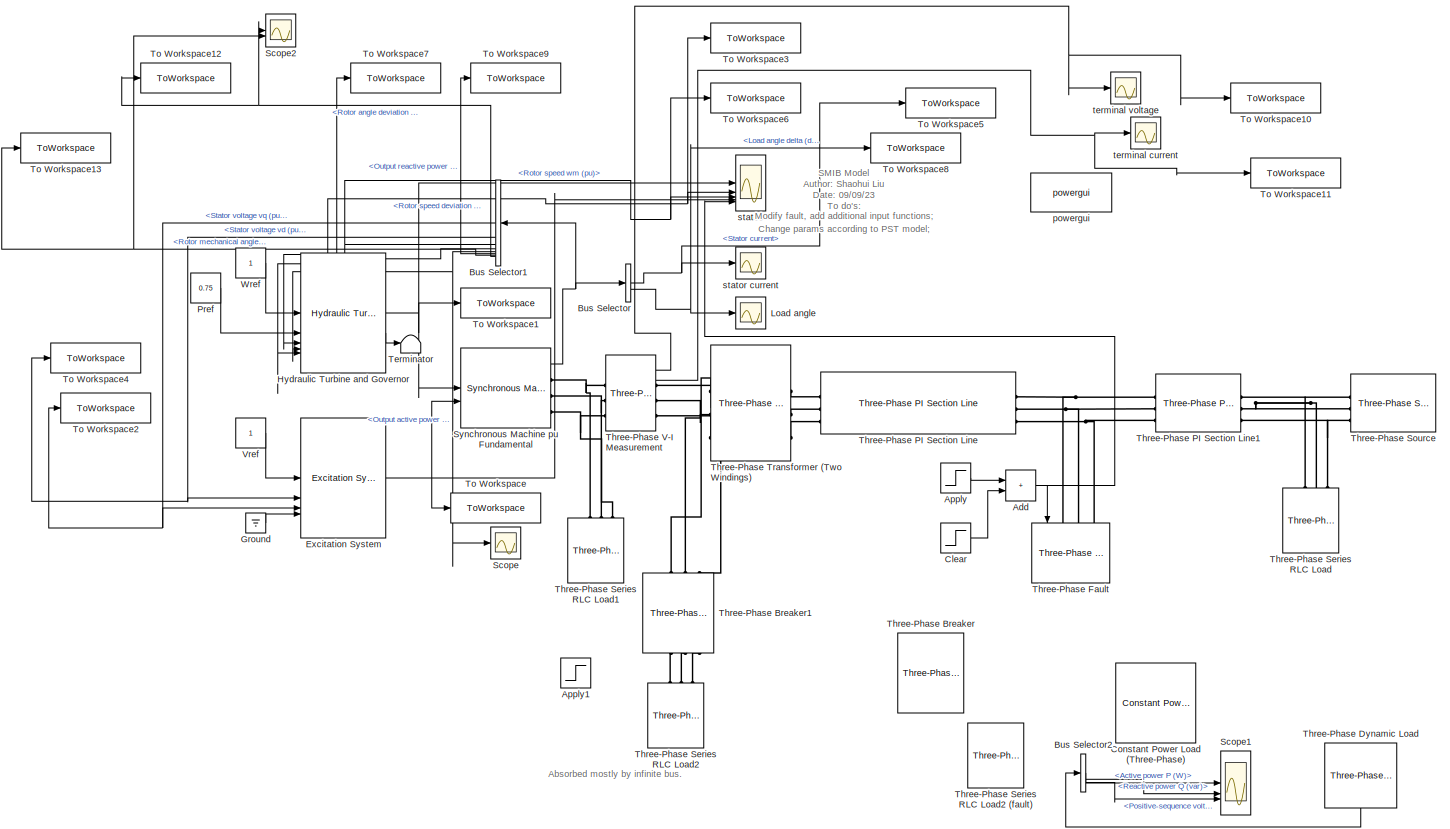
[diagram: root canvas - part 1/1, most of the canvas]
MODEL slx_c48f810256ff
KIND model
CONFIG AbsTol = auto
CONFIG EnableMultiTasking = off
CONFIG FixedStep = 1e-4
CONFIG MaxStep = auto
CONFIG MinStep = auto
CONFIG RelTol = 1e-3
CONFIG SampleTimeConstraint = Unconstrained
CONFIG SolverName = FixedStepAuto
CONFIG StartTime = 0.0
CONFIG StopTime = 30.0
BLOCK [Sum] Add
  IconShape = rectangular
BLOCK [Step] Apply
  After = 5
  SampleTime = 0
  Time = 15
BLOCK [Step] Apply1
  Commented = on
  SampleTime = 0
  Time = 23
BLOCK [BusSelector] Bus Selector
  OutputSignals = Stator current,Load angle   delta  (deg)
BLOCK [BusSelector] Bus Selector1
  OutputSignals = dq0 components.Stator voltage  vq (pu),dq0 components.Stator voltage  vd (pu),Mechanical.Rotor speed  wm (pu),Mechanical.Rotor speed deviation  dw (pu),Output active power   Peo (pu),Output reactive power  Qeo (pu),Mechanical.Rotor mechanical angle  theta (deg),Mechanical.Rotor angle deviation  d_theta (rad)
BLOCK [BusSelector] Bus Selector2
  Commented = on
  OutputSignals = Active power P (W),Reactive power Q (var),Positive-sequence voltage V (pu)
BLOCK [Step] Clear
  After = -5
  SampleTime = 0
  Time = 15.1667
BLOCK [Reference] Constant Power Load (Three-Phase)  REF=ee_lib/Passive/Constant Power Load
(Three-Phase)
  Commented = on
  SourceBlock = ee_lib/Passive/Constant Power Load\n(Three-Phase)
  SourceType = Constant Power Load\n(Three-Phase)
BLOCK [Reference] Excitation System  REF=spsExcitationSystemLib/Excitation System
  LibrarySourceBlock = sps_lib/Electrical Machines/Synchronous Machine Control/Excitation System
  SourceBlock = spsExcitationSystemLib/Excitation System
  SourceType = Excitation System
BLOCK [Ground] Ground
BLOCK [Reference] Hydraulic Turbine and Governor  REF=spsHydraulicTurbineandGovernorLib/Hydraulic Turbine
and Governor
  LibrarySourceBlock = sps_lib/Electrical Machines/Synchronous Machine Control/Hydraulic Turbine\nand Governor
  SourceBlock = spsHydraulicTurbineandGovernorLib/Hydraulic Turbine\nand Governor
  SourceType = Hydraulic Turbine and Governor
BLOCK [Scope] Load angle
  Floating = off
  NumInputPorts = 1
  ScopeSpecificationString = Simulink.scopes.TimeScopeBlockCfg('CurrentConfiguration', extmgr.ConfigurationSet(extmgr.Configuration('Core','General UI',true),extmgr.Configuration('Core','Source UI',true),extmgr.Configuration('Sources','WiredSimulink',true,'DataLoggingVariableName','ScopeData1'),extmgr.Configuration('Visuals','Time Domain',true,'SerializedDisplays',{struct('MinYLimReal','-78.1612','MaxYLimReal','141.13987','YL...<+1467ch>
BLOCK [Constant] Pref
  Value = 0.75
BLOCK [Scope] Scope
  Floating = off
  NumInputPorts = 1
  ScopeSpecificationString = Simulink.scopes.TimeScopeBlockCfg('CurrentConfiguration', extmgr.ConfigurationSet(extmgr.Configuration('Core','General UI',true),extmgr.Configuration('Core','Source UI',true),extmgr.Configuration('Sources','WiredSimulink',true,'DataLoggingVariableName','ScopeData1'),extmgr.Configuration('Visuals','Time Domain',true,'SerializedDisplays',{struct('MinYLimReal','0.3476','MaxYLimReal','1.1009','YLabelR...<+1429ch>
BLOCK [Scope] Scope1
  Commented = on
  Floating = off
  NumInputPorts = 3
  ScopeSpecificationString = Simulink.scopes.TimeScopeBlockCfg('CurrentConfiguration', extmgr.ConfigurationSet(extmgr.Configuration('Core','General UI',true),extmgr.Configuration('Core','Source UI',true),extmgr.Configuration('Sources','WiredSimulink',true,'DataLoggingVariableName','ScopeData1'),extmgr.Configuration('Visuals','Time Domain',true,'SerializedDisplays',{struct('MinYLimReal','-275826016478479712.00000','MaxYLimReal...<+1611ch>
BLOCK [Scope] Scope2
  Floating = off
  NumInputPorts = 2
  ScopeSpecificationString = Simulink.scopes.TimeScopeBlockCfg('CurrentConfiguration', extmgr.ConfigurationSet(extmgr.Configuration('Core','General UI',true),extmgr.Configuration('Core','Source UI',true),extmgr.Configuration('Sources','WiredSimulink',true,'DataLoggingVariableName','ScopeData1'),extmgr.Configuration('Visuals','Time Domain',true,'SerializedDisplays',{struct('MinYLimReal','-4051.46386','MaxYLimReal','36433.65321...<+1490ch>
BLOCK [Reference] Synchronous Machine pu Fundamental  REF=spsSynchronousMachinepuFundamentalLib/Synchronous Machine
pu Fundamental
  LibrarySourceBlock = sps_lib/Electrical Machines/Synchronous Machine\npu Fundamental
  SourceBlock = spsSynchronousMachinepuFundamentalLib/Synchronous Machine\npu Fundamental
  SourceType = Synchronous Machine
BLOCK [Terminator] Terminator
BLOCK [Reference] Three-Phase Breaker  REF=spsThreePhaseBreakerLib/Three-Phase Breaker
  Commented = on
  LibrarySourceBlock = sps_lib/Power Grid Elements/Three-Phase Breaker
  NameLocation = left
  SourceBlock = spsThreePhaseBreakerLib/Three-Phase Breaker
  SourceType = Three-Phase Breaker
BLOCK [Reference] Three-Phase Breaker1  REF=spsThreePhaseBreakerLib/Three-Phase Breaker
  Commented = on
  LibrarySourceBlock = sps_lib/Power Grid Elements/Three-Phase Breaker
  NameLocation = left
  SourceBlock = spsThreePhaseBreakerLib/Three-Phase Breaker
  SourceType = Three-Phase Breaker
BLOCK [Reference] Three-Phase Dynamic Load  REF=spsThreePhaseDynamicLoadLib/Three-Phase
Dynamic Load
  Commented = on
  LibrarySourceBlock = sps_lib/Passives/Three-Phase\nDynamic Load
  NameLocation = left
  SourceBlock = spsThreePhaseDynamicLoadLib/Three-Phase\nDynamic Load
  SourceType = Three-Phase Dynamic Load
BLOCK [Reference] Three-Phase Fault  REF=spsThreePhaseFaultLib/Three-Phase Fault
  LibrarySourceBlock = sps_lib/Power Grid Elements/Three-Phase Fault
  NameLocation = left
  SourceBlock = spsThreePhaseFaultLib/Three-Phase Fault
  SourceType = Three-Phase Fault
BLOCK [Reference] Three-Phase PI Section Line  REF=spsThreePhasePISectionLineLib/Three-Phase
PI Section Line
  AttributesFormatString = \n
  LibrarySourceBlock = sps_lib/Power Grid Elements/Three-Phase\nPI Section Line
  SourceBlock = spsThreePhasePISectionLineLib/Three-Phase\nPI Section Line
  SourceType = Three-Phase PI Section Line
BLOCK [Reference] Three-Phase PI Section Line1  REF=spsThreePhasePISectionLineLib/Three-Phase
PI Section Line
  AttributesFormatString = \n
  LibrarySourceBlock = sps_lib/Power Grid Elements/Three-Phase\nPI Section Line
  SourceBlock = spsThreePhasePISectionLineLib/Three-Phase\nPI Section Line
  SourceType = Three-Phase PI Section Line
BLOCK [Reference] Three-Phase Series RLC Load  REF=spsThreePhaseSeriesRLCLoadLib/Three-Phase
Series RLC Load
  AttributesFormatString = \n
  LibrarySourceBlock = sps_lib/Passives/Three-Phase\nSeries RLC Load
  SourceBlock = spsThreePhaseSeriesRLCLoadLib/Three-Phase\nSeries RLC Load
  SourceType = Three-Phase Series RLC Load
BLOCK [Reference] Three-Phase Series RLC Load1  REF=spsThreePhaseSeriesRLCLoadLib/Three-Phase
Series RLC Load
  AttributesFormatString = \n
  LibrarySourceBlock = sps_lib/Passives/Three-Phase\nSeries RLC Load
  SourceBlock = spsThreePhaseSeriesRLCLoadLib/Three-Phase\nSeries RLC Load
  SourceType = Three-Phase Series RLC Load
BLOCK [Reference] Three-Phase Series RLC Load2  REF=spsThreePhaseSeriesRLCLoadLib/Three-Phase
Series RLC Load
  AttributesFormatString = \n
  Commented = on
  LibrarySourceBlock = sps_lib/Passives/Three-Phase\nSeries RLC Load
  SourceBlock = spsThreePhaseSeriesRLCLoadLib/Three-Phase\nSeries RLC Load
  SourceType = Three-Phase Series RLC Load
BLOCK [Reference] Three-Phase Series RLC Load2 (fault)  REF=spsThreePhaseSeriesRLCLoadLib/Three-Phase
Series RLC Load
  AttributesFormatString = \n
  Commented = on
  LibrarySourceBlock = sps_lib/Passives/Three-Phase\nSeries RLC Load
  SourceBlock = spsThreePhaseSeriesRLCLoadLib/Three-Phase\nSeries RLC Load
  SourceType = Three-Phase Series RLC Load
BLOCK [Reference] Three-Phase Source  REF=spsThreePhaseSourceLib/Three-Phase Source
  LibrarySourceBlock = sps_lib/Sources/Three-Phase Source
  SourceBlock = spsThreePhaseSourceLib/Three-Phase Source
  SourceType = Three-Phase Source
BLOCK [Reference] Three-Phase Transformer (Two Windings)  REF=spsThreePhaseTransformerTwoWindingsLib/Three-Phase
Transformer
(Two Windings)
  LibrarySourceBlock = sps_lib/Power Grid Elements/Three-Phase\nTransformer\n(Two Windings)
  SourceBlock = spsThreePhaseTransformerTwoWindingsLib/Three-Phase\nTransformer\n(Two Windings)
  SourceType = Three-Phase Transformer (Two Windings)
BLOCK [Reference] Three-Phase V-I Measurement  REF=spsThreePhaseVIMeasurementLib/Three-Phase
V-I Measurement
  LibrarySourceBlock = sps_lib/Sensors and Measurements/Three-Phase\nV-I Measurement
  SourceBlock = spsThreePhaseVIMeasurementLib/Three-Phase\nV-I Measurement
  SourceType = Three-Phase VI Measurement
BLOCK [ToWorkspace] To Workspace
  FixptAsFi = on
  MaxDataPoints = inf
  SampleTime = -1
  SaveFormat = Timeseries
  VariableName = Vf
BLOCK [ToWorkspace] To Workspace1
  FixptAsFi = on
  MaxDataPoints = inf
  SampleTime = -1
  SaveFormat = Timeseries
  VariableName = Pm
BLOCK [ToWorkspace] To Workspace10
  FixptAsFi = on
  MaxDataPoints = inf
  SampleTime = -1
  SaveFormat = Timeseries
  VariableName = V_terminal
BLOCK [ToWorkspace] To Workspace11
  FixptAsFi = on
  MaxDataPoints = inf
  SampleTime = -1
  SaveFormat = Timeseries
  VariableName = current
BLOCK [ToWorkspace] To Workspace12
  FixptAsFi = on
  MaxDataPoints = inf
  SampleTime = -1
  SaveFormat = Timeseries
  VariableName = ddelta
BLOCK [ToWorkspace] To Workspace13
  FixptAsFi = on
  MaxDataPoints = inf
  SampleTime = -1
  SaveFormat = Timeseries
  VariableName = delta
BLOCK [ToWorkspace] To Workspace2
  FixptAsFi = on
  MaxDataPoints = inf
  SampleTime = -1
  SaveFormat = Timeseries
  VariableName = Vq
BLOCK [ToWorkspace] To Workspace3
  FixptAsFi = on
  MaxDataPoints = inf
  SampleTime = -1
  SaveFormat = Timeseries
  VariableName = dw
BLOCK [ToWorkspace] To Workspace4
  FixptAsFi = on
  MaxDataPoints = inf
  SampleTime = -1
  SaveFormat = Timeseries
  VariableName = Vd
BLOCK [ToWorkspace] To Workspace5
  FixptAsFi = on
  MaxDataPoints = inf
  SampleTime = -1
  SaveFormat = Timeseries
  VariableName = Stator_current
BLOCK [ToWorkspace] To Workspace6
  FixptAsFi = on
  MaxDataPoints = inf
  SampleTime = -1
  SaveFormat = Timeseries
  VariableName = wm
BLOCK [ToWorkspace] To Workspace7
  FixptAsFi = on
  MaxDataPoints = inf
  SampleTime = -1
  SaveFormat = Timeseries
  VariableName = Peo
BLOCK [ToWorkspace] To Workspace8
  FixptAsFi = on
  MaxDataPoints = inf
  SampleTime = -1
  SaveFormat = Timeseries
  VariableName = Load_angle
BLOCK [ToWorkspace] To Workspace9
  FixptAsFi = on
  MaxDataPoints = inf
  SampleTime = -1
  SaveFormat = Timeseries
  VariableName = Qeo
BLOCK [Constant] Vref
BLOCK [Constant] Wref
BLOCK [Reference] powergui  REF=sps_lib/powergui
  Priority = 1
  SourceBlock = sps_lib/powergui
  SourceType = PSB option menu block
BLOCK [Scope] states
  Floating = off
  NumInputPorts = 5
  ScopeSpecificationString = Simulink.scopes.TimeScopeBlockCfg('CurrentConfiguration', extmgr.ConfigurationSet(extmgr.Configuration('Core','General UI',true),extmgr.Configuration('Core','Source UI',true),extmgr.Configuration('Sources','WiredSimulink',true,'DataLoggingVariableName','ScopeData2'),extmgr.Configuration('Visuals','Time Domain',true,'SerializedDisplays',{struct('MinYLimReal','0.73764','MaxYLimReal','0.87726','YLabe...<+3833ch>
BLOCK [Scope] stator current
  Floating = off
  NumInputPorts = 1
  ScopeSpecificationString = Simulink.scopes.TimeScopeBlockCfg('CurrentConfiguration', extmgr.ConfigurationSet(extmgr.Configuration('Core','General UI',true),extmgr.Configuration('Core','Source UI',true),extmgr.Configuration('Sources','WiredSimulink',true),extmgr.Configuration('Visuals','Time Domain',true,'SerializedDisplays',{struct('MinYLimReal','-0.89264','MaxYLimReal','8.03372','YLabelReal','','MinYLimMag','0.00000','MaxY...<+1409ch>
BLOCK [Scope] terminal current
  Floating = off
  NumInputPorts = 1
  ScopeSpecificationString = Simulink.scopes.TimeScopeBlockCfg('CurrentConfiguration', extmgr.ConfigurationSet(extmgr.Configuration('Core','General UI',true),extmgr.Configuration('Core','Source UI',true),extmgr.Configuration('Sources','WiredSimulink',true,'DataLoggingVariableName','ScopeData2'),extmgr.Configuration('Visuals','Time Domain',true,'SerializedDisplays',{struct('MinYLimReal','-10121.93077','MaxYLimReal','89297.4198...<+1657ch>
BLOCK [Scope] terminal voltage
  Floating = off
  NumInputPorts = 1
  ScopeSpecificationString = Simulink.scopes.TimeScopeBlockCfg('CurrentConfiguration', extmgr.ConfigurationSet(extmgr.Configuration('Core','General UI',true),extmgr.Configuration('Core','Source UI',true),extmgr.Configuration('Sources','WiredSimulink',true,'DataLoggingVariableName','ScopeData1'),extmgr.Configuration('Visuals','Time Domain',true,'SerializedDisplays',{struct('MinYLimReal','-4053.44345','MaxYLimReal','34681.22887...<+1657ch>
ANNOTATION (root): SMIB Model Author: Shaohui Liu Date: 09/09/23 To do's: Change params according to PST model; Modify fault, add additional input functions; Try 2-machine setup, may need to add PSS; Test IBR.
ANNOTATION (root): Absorbed mostly by infinite bus.
NET Add:1 -> Three-Phase Fault:1, states:5
LINE Apply:1 -> Add:1
NET Bus Selector1:1 -> Excitation System:3, To Workspace2:1
NET Bus Selector1:2 -> Excitation System:2, To Workspace4:1
NET Bus Selector1:3 -> Hydraulic Turbine and Governor:3, To Workspace6:1, states:3
NET Bus Selector1:4 -> Hydraulic Turbine and Governor:5, To Workspace3:1, states:2
NET Bus Selector1:5 -> Hydraulic Turbine and Governor:4, Scope:1, To Workspace7:1
LINE Bus Selector1:6 -> To Workspace9:1
NET Bus Selector1:7 -> Scope2:2, To Workspace13:1
NET Bus Selector1:8 -> Scope2:1, To Workspace12:1
LINE Bus Selector2:1 -> Scope1:1
LINE Bus Selector2:2 -> Scope1:2
LINE Bus Selector2:3 -> Scope1:3
NET Bus Selector:1 -> To Workspace5:1, stator current:1
NET Bus Selector:2 -> Load angle:1, To Workspace8:1
LINE Clear:1 -> Add:2
NET Excitation System:1 -> Synchronous Machine pu Fundamental:2, To Workspace:1, states:4
LINE Ground:1 -> Excitation System:4
NET Hydraulic Turbine and Governor:1 -> Synchronous Machine pu Fundamental:1, To Workspace1:1, states:1
LINE Hydraulic Turbine and Governor:2 -> Terminator:1
LINE Pref:1 -> Hydraulic Turbine and Governor:2
NET Synchronous Machine pu Fundamental:1 -> Bus Selector1:1, Bus Selector:1
LINE Three-Phase Dynamic Load:1 -> Bus Selector2:1
NET Three-Phase V-I Measurement:1 -> To Workspace10:1, terminal voltage:1
NET Three-Phase V-I Measurement:2 -> To Workspace11:1, terminal current:1
LINE Vref:1 -> Excitation System:1
LINE Wref:1 -> Hydraulic Turbine and Governor:1
PNET net1: Synchronous Machine pu Fundamental:RConn1 -- Three-Phase Series RLC Load1:LConn1 -- Three-Phase V-I Measurement:LConn1
PNET net2: Synchronous Machine pu Fundamental:RConn2 -- Three-Phase Series RLC Load1:LConn2 -- Three-Phase V-I Measurement:LConn2
PNET net3: Synchronous Machine pu Fundamental:RConn3 -- Three-Phase Series RLC Load1:LConn3 -- Three-Phase V-I Measurement:LConn3
PLINE Three-Phase Breaker1:LConn1 -- Three-Phase Series RLC Load2:LConn1
PLINE Three-Phase Breaker1:LConn2 -- Three-Phase Series RLC Load2:LConn2
PLINE Three-Phase Breaker1:LConn3 -- Three-Phase Series RLC Load2:LConn3
PNET net4: Three-Phase Breaker1:RConn1 -- Three-Phase Transformer (Two Windings):LConn1 -- Three-Phase V-I Measurement:RConn1
PNET net5: Three-Phase Breaker1:RConn2 -- Three-Phase Transformer (Two Windings):LConn2 -- Three-Phase V-I Measurement:RConn2
PNET net6: Three-Phase Breaker1:RConn3 -- Three-Phase Transformer (Two Windings):LConn3 -- Three-Phase V-I Measurement:RConn3
PNET net7: Three-Phase Fault:LConn1 -- Three-Phase PI Section Line1:LConn1 -- Three-Phase PI Section Line:RConn1
PNET net8: Three-Phase Fault:LConn2 -- Three-Phase PI Section Line1:LConn2 -- Three-Phase PI Section Line:RConn2
PNET net9: Three-Phase Fault:LConn3 -- Three-Phase PI Section Line1:LConn3 -- Three-Phase PI Section Line:RConn3
PNET net10: Three-Phase PI Section Line1:RConn1 -- Three-Phase Series RLC Load:LConn1 -- Three-Phase Source:RConn1
PNET net11: Three-Phase PI Section Line1:RConn2 -- Three-Phase Series RLC Load:LConn2 -- Three-Phase Source:RConn2
PNET net12: Three-Phase PI Section Line1:RConn3 -- Three-Phase Series RLC Load:LConn3 -- Three-Phase Source:RConn3
PLINE Three-Phase PI Section Line:LConn1 -- Three-Phase Transformer (Two Windings):RConn1
PLINE Three-Phase PI Section Line:LConn2 -- Three-Phase Transformer (Two Windings):RConn2
PLINE Three-Phase PI Section Line:LConn3 -- Three-Phase Transformer (Two Windings):RConn3
note: NET lines group one-source signal fan-out (src -> all destinations, sorted); 1:1 wires keep LINE; PNET lines group multi-terminal physical nets as a canonical sorted terminal list (undirected conserving connections); 2-terminal nets keep the pairwise PLINE form
